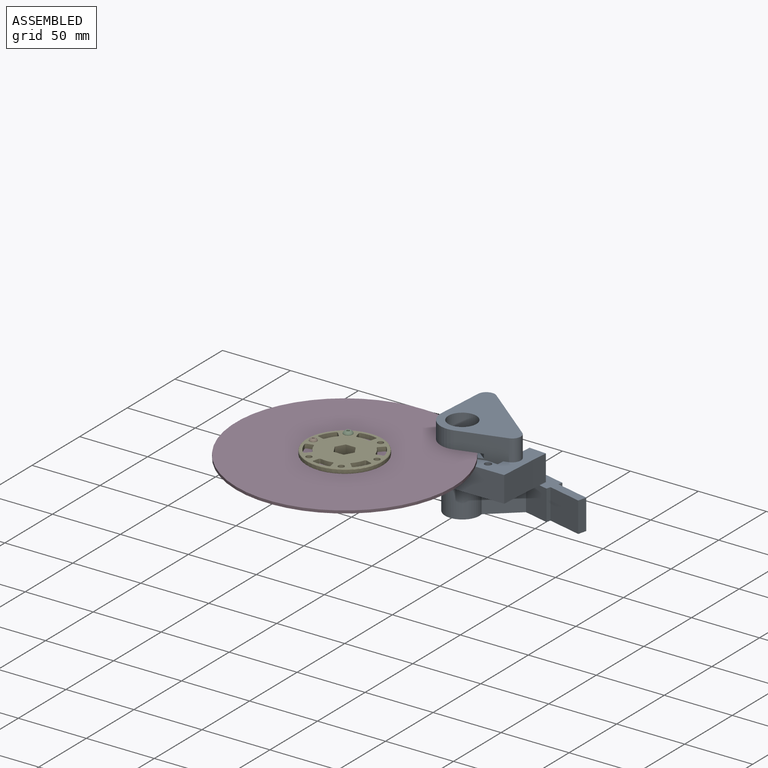
[diagram: assembled view]
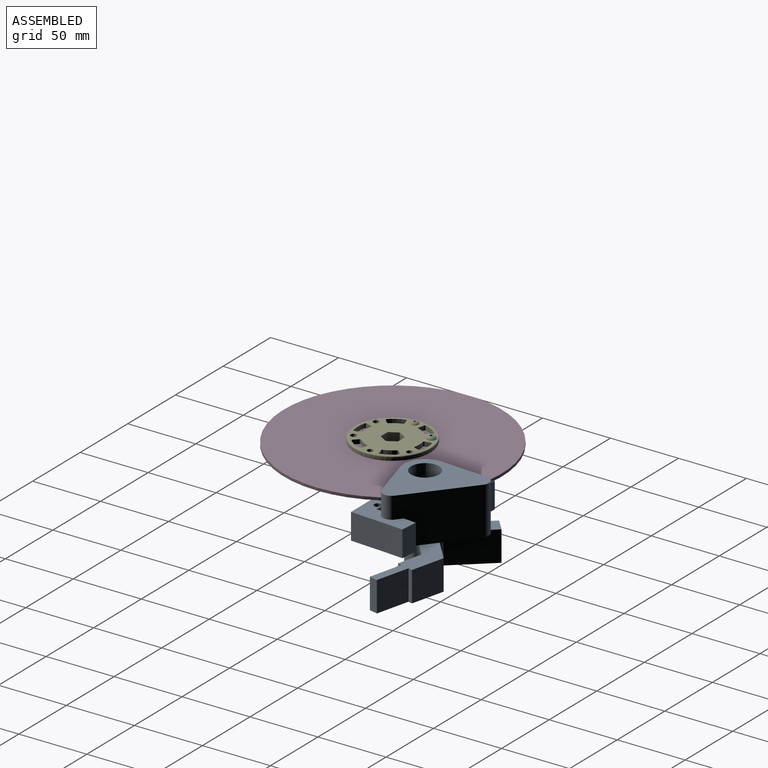
[diagram: assembled view, second angle]
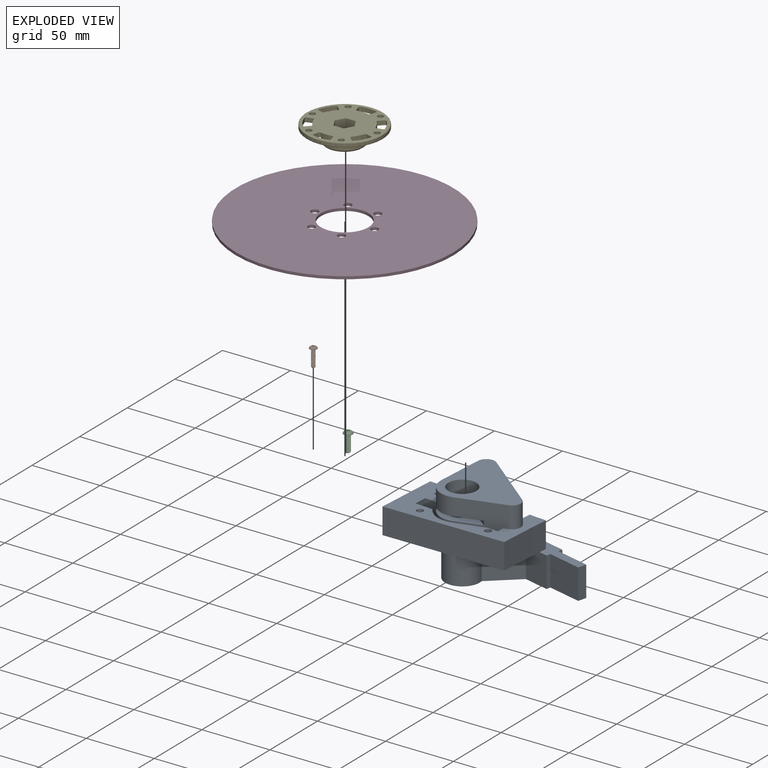
[diagram: exploded view]
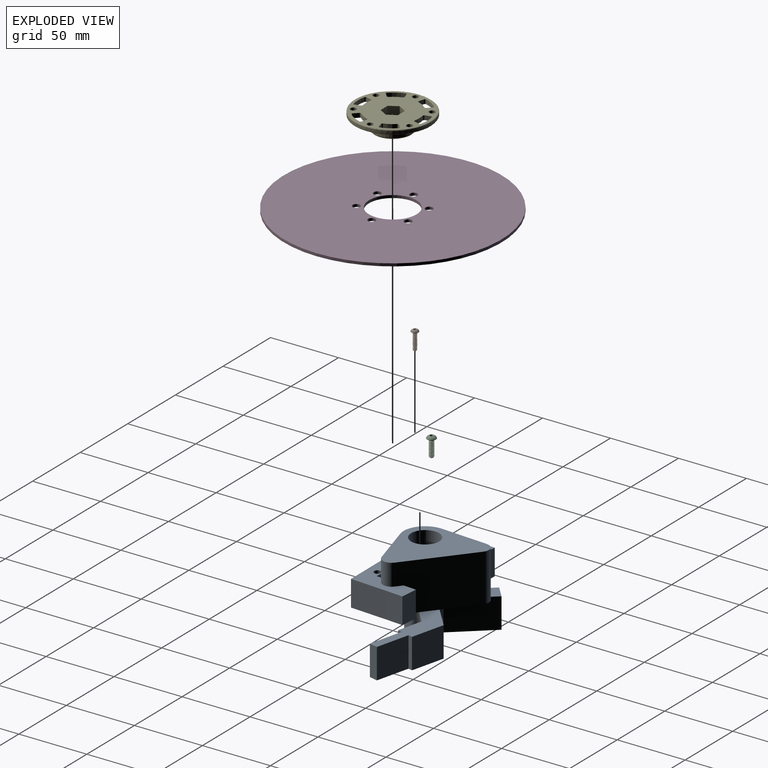
[diagram: exploded view, second angle]
ASSEMBLY  parts=5 mates=4
PART A: 53 faces, bbox 117.7x66.7x60.3 mm
  f0: plane 34.93x34.93mm, normal (-1,0,0), area 1008.1mm2, adj f1,f6,f7,f8,f9,f27,f33,f34
  f1: cylinder r=15.88mm len=21.3mm, axis (0,0,-1), area 387.1mm2, adj f0,f2,f7,f8
  f2: plane 34.93x32.82mm, normal (0.34,-0.94,0), area 1091.9mm2, adj f1,f3,f7,f8,f9,f12,f19,f33
  f3: cylinder r=6.35mm len=15.88mm, axis (0,0,-1), area 219.9mm2, adj f2,f4,f7,f34
  f4: plane 45.6x34.93mm, normal (0.57,0.82,0), area 1834.1mm2, adj f3,f6,f7,f28,f33,f34
  f5: cylinder r=10.32mm len=20.64mm, axis (0,0,-1), area 823.4mm2, adj f7,f8,f11
  f6: cylinder r=6.35mm len=34.93mm, axis (0,0,-1), area 483.8mm2, adj f0,f4,f7,f33
  f7: plane 58.3x57.15mm, normal (0,0,1), area 1769.3mm2, adj f0,f1,f2,f3,f4,f5,f6
  f8: plane 39.21x34.93mm, normal (0,0,-1), area 408mm2, adj f0,f1,f2,f5,f9
  f9: plane 39.21x27.45mm, normal (-0.57,-0.82,0), area 176.1mm2, adj f0,f2,f8,f10,f11,f20,f30,f34
  f10: plane 13.13x9.59mm, normal (0,0,-1), area 42.6mm2, adj f9,f20
  f11: plane 13.13x9.59mm, normal (0,0,1), area 42.6mm2, adj f5,f9
  f12: cylinder r=15.88mm len=21.3mm, axis (0,0,1), area 580.6mm2, adj f2,f13,f33,f34
  f13: plane 19.05x12.7mm, normal (0,-1,0), area 241.9mm2, adj f12,f14,f33,f34
  f14: plane 19.05x9.53mm, normal (1,0,0), area 181.5mm2, adj f13,f15,f33,f34
  f15: plane 19.05x13.26mm, normal (0,1,0), area 252.6mm2, adj f14,f16,f33,f34
  f16: cylinder r=18.03mm len=21.48mm, axis (0,0,1), area 468.4mm2, adj f15,f17,f33,f34
  f17: plane 20.39x19.05mm, normal (-0.34,0.94,0), area 413.4mm2, adj f16,f18,f33,f34
  f18: plane 19.05x8.37mm, normal (0,1,0), area 159.4mm2, adj f17,f19,f33,f34
  f19: plane 19.05x5.34mm, normal (-1,0,0), area 101.8mm2, adj f2,f18,f33,f34
  f20: cylinder r=10.32mm len=20.64mm, axis (0,0,1), area 1221.2mm2, adj f9,f10,f30,f34,f37
  f21: plane 19.05x12.7mm, normal (1,-0.02,0), area 241.9mm2, adj f22,f31,f33,f34
  f22: plane 27.11x19.05mm, normal (1,0,0), area 516.5mm2, adj f21,f23,f33,f34
  f23: plane 88.9x19.05mm, normal (0.07,-1,0), area 1697.9mm2, adj f22,f24,f33,f34
  f24: plane 46.04x19.05mm, normal (-1,0,0), area 877mm2, adj f23,f25,f33,f34
  f25: plane 19.05x12.7mm, normal (0,1,0), area 241.9mm2, adj f24,f26,f33,f34
  f26: plane 19.05x12.7mm, normal (1,0,0), area 241.9mm2, adj f25,f27,f33,f34
  f27: plane 19.05x12.7mm, normal (0,1,0), area 241.9mm2, adj f0,f26,f33,f34
  f28: plane 19.05x9.46mm, normal (-1,0.02,0), area 180.2mm2, adj f4,f31,f33,f34
  f29: cylinder r=2.5mm len=19.05mm, axis (0,0,1), area 299.2mm2, adj f33,f34
  f30: plane 19.05x1.01mm, normal (0,1,0), area 19.3mm2, adj f9,f20,f34,f37
  f31: plane 19.05x12.7mm, normal (0.02,1,0), area 241.9mm2, adj f21,f28,f33,f34
  f32: cylinder r=2.5mm len=19.05mm, axis (0,0,1), area 299.2mm2, adj f33,f34
  f33: plane 89.11x66.68mm, normal (0,0,-1), area 3256.1mm2, adj f0,f2,f4,f6,f12,f13,f14,f15
  f34: plane 89.11x46.37mm, normal (0,0,1), area 2066.6mm2, adj f0,f2,f3,f4,f9,f12,f13,f14
  f35: cylinder r=12.7mm len=25.4mm, axis (0,0,1), area 1434.3mm2, adj f33,f38,f39,f40,f41,f49,f50,f52
  f36: cylinder r=6.35mm len=25.4mm, axis (0,0,1), area 1013.4mm2, adj f37,f52
  f37: plane 21.65x20.64mm, normal (0,0,1), area 208.2mm2, adj f9,f20,f30,f36
  f38: plane 33.81x32.98mm, normal (0,0,1), area 423.7mm2, adj f35,f40,f50,f51
  f39: plane 73.13x32.63mm, normal (0,0,1), area 810.1mm2, adj f35,f41,f42,f43,f44,f45,f46,f47
  f40: plane 24.83x24.83mm, normal (0.71,0.71,0), area 780.4mm2, adj f35,f38,f51,f52
  f41: plane 23.65x23.65mm, normal (-0.71,0.71,0), area 743.5mm2, adj f35,f39,f42,f52
  f42: plane 25.01x22.23mm, normal (0.17,0.98,0), area 564.5mm2, adj f39,f41,f43,f52
  f43: plane 22.23x3.13mm, normal (0.98,-0.17,0), area 70.6mm2, adj f39,f42,f44,f52
  f44: plane 25.01x22.23mm, normal (0.17,0.98,0), area 564.5mm2, adj f39,f43,f45,f52
  f45: plane 22.23x6.25mm, normal (0.98,-0.17,0), area 141.1mm2, adj f39,f44,f46,f52
  f46: plane 25.01x22.23mm, normal (-0.17,-0.98,0), area 564.5mm2, adj f39,f45,f47,f52
  f47: plane 22.23x3.13mm, normal (0.98,-0.17,0), area 70.6mm2, adj f39,f46,f48,f52
  f48: plane 22.23x18.5mm, normal (-0.17,-0.98,0), area 417.6mm2, adj f39,f47,f49,f52
  f49: plane 22.23x18.98mm, normal (0.71,-0.71,0), area 596.5mm2, adj f35,f39,f48,f52
  f50: plane 24x24mm, normal (-0.71,-0.71,0), area 754.3mm2, adj f35,f38,f51,f52
  f51: plane 22.23x8.98mm, normal (-0.71,0.71,0), area 282.3mm2, adj f38,f40,f50,f52
  f52: plane 112.34x50.05mm, normal (0,0,-1), area 1613.8mm2, adj f35,f36,f40,f41,f42,f43,f44,f45
PART B: 24 faces, bbox 5.8x14.8x5.8 mm
  f0: cylinder r=1.42mm len=12.22mm, axis (0,1,0), area 13.7mm2, adj f2,f4,f6,f9
  f1: cone r=0.95mm half-angle=45deg, axis (0,-1,0), area 2.1mm2, adj f2,f3,f4,f5
  f2: cone r=0.95mm half-angle=45deg, axis (0,-1,0), area 0.6mm2, adj f0,f1,f4,f6
  f3: plane 1.89x1.89mm, normal (0,1,0), area 2.8mm2, adj f1
  f4: bspline ~13.26x3.29mm, area 71.4mm2, adj f0,f1,f2,f5,f9
  f5: cylinder r=1.01mm len=12.64mm, axis (0,1,0), area 25.5mm2, adj f1,f4,f6,f9
  f6: bspline ~13.04x3.29mm, area 71.7mm2, adj f0,f2,f5,f9
  f7: sphere r=3.07mm, area 24.5mm2, adj f8,f10
  f8: plane 2.85x2.85mm, normal (0,-1,0), area 3.7mm2, adj f7,f11,f12,f13,f14,f15,f16
  f9: plane 5.66x5.66mm, normal (0,1,0), area 18.3mm2, adj f0,f4,f5,f6,f10
  f10: cylinder r=2.71mm len=5.41mm, axis (0,-1,0), area 3.8mm2, adj f7,f9
  f11: cone r=0.92mm half-angle=45deg, axis (0,-1,0), area 0mm2, adj f8,f18
  f12: cone r=0.92mm half-angle=45deg, axis (0,-1,0), area 0mm2, adj f8,f19
  f13: cone r=0.92mm half-angle=45deg, axis (0,-1,0), area 0mm2, adj f8,f20
  f14: cone r=0.92mm half-angle=45deg, axis (0,-1,0), area 0mm2, adj f8,f21
  f15: cone r=0.92mm half-angle=45deg, axis (0,-1,0), area 0mm2, adj f8,f22
  f16: cone r=0.92mm half-angle=45deg, axis (0,-1,0), area 0mm2, adj f8,f23
  f17: plane 1.83x1.59mm, normal (0,-1,0), area 2.2mm2, adj f18,f19,f20,f21,f22,f23
  f18: plane 1.4x1.27mm, normal (-1,0,0), area 0.9mm2, adj f11,f17,f19,f23
  f19: plane 1.4x1.14mm, normal (-0.5,0,-0.87), area 0.9mm2, adj f12,f17,f18,f20
  f20: plane 1.4x1.14mm, normal (0.5,0,-0.87), area 0.9mm2, adj f13,f17,f19,f21
  f21: plane 1.4x1.27mm, normal (1,0,0), area 0.9mm2, adj f14,f17,f20,f22
  f22: plane 1.4x1.14mm, normal (0.5,0,0.87), area 0.9mm2, adj f15,f17,f21,f23
  f23: plane 1.4x1.14mm, normal (-0.5,0,0.87), area 0.9mm2, adj f16,f17,f18,f22
PART C: 24 faces, bbox 7.1x15.3x7.1 mm
  f0: cylinder r=1.75mm len=12.1mm, axis (0,1,0), area 16.8mm2, adj f1,f5,f22,f23
  f1: bspline ~13.39x3.51mm, area 87.3mm2, adj f0,f2,f4,f5,f23
  f2: cone r=1.16mm half-angle=45deg, axis (0,-1,0), area 3.2mm2, adj f1,f3,f4,f23
  f3: plane 2.31x2.31mm, normal (0,1,0), area 4.2mm2, adj f2
  f4: cylinder r=1.24mm len=12.62mm, axis (0,1,0), area 12.3mm2, adj f1,f2,f5,f22
  f5: plane 6.96x6.96mm, normal (0,1,0), area 27.7mm2, adj f0,f1,f4,f6,f22
  f6: cylinder r=3.33mm len=6.65mm, axis (0,-1,0), area 5.8mm2, adj f5,f7
  f7: sphere r=3.76mm, area 37.2mm2, adj f6,f8
  f8: plane 3.73x3.73mm, normal (0,-1,0), area 5.5mm2, adj f7,f9,f17,f18,f19,f20,f21
  f9: cone r=1.15mm half-angle=45deg, axis (0,-1,0), area 0mm2, adj f8,f10
  f10: plane 1.73x1.43mm, normal (0.5,0,0.87), area 1.4mm2, adj f9,f11,f15,f16
  f11: plane 2.29x1.98mm, normal (0,-1,0), area 3.4mm2, adj f10,f12,f13,f14,f15,f16
  f12: plane 1.73x1.43mm, normal (0.5,0,-0.87), area 1.4mm2, adj f11,f13,f16,f20
  f13: plane 1.73x1.43mm, normal (-0.5,0,-0.87), area 1.4mm2, adj f11,f12,f14,f19
  f14: plane 1.73x1.58mm, normal (-1,0,0), area 1.4mm2, adj f11,f13,f15,f18
  f15: plane 1.73x1.43mm, normal (-0.5,0,0.87), area 1.4mm2, adj f10,f11,f14,f17
  f16: plane 1.73x1.58mm, normal (1,0,0), area 1.4mm2, adj f10,f11,f12,f21
  f17: cone r=1.15mm half-angle=45deg, axis (0,-1,0), area 0mm2, adj f8,f15
  f18: cone r=1.15mm half-angle=45deg, axis (0,-1,0), area 0mm2, adj f8,f14
  f19: cone r=1.15mm half-angle=45deg, axis (0,-1,0), area 0mm2, adj f8,f13
  f20: cone r=1.15mm half-angle=45deg, axis (0,-1,0), area 0mm2, adj f8,f12
  f21: cone r=1.15mm half-angle=45deg, axis (0,-1,0), area 0mm2, adj f8,f16
  f22: bspline ~13x3.51mm, area 87.3mm2, adj f0,f4,f5,f23
  f23: cone r=1.16mm half-angle=45deg, axis (0,-1,0), area 0.9mm2, adj f0,f1,f2,f22
PART D: 10 faces, bbox 160x160x2 mm
  f0: cylinder r=17.5mm len=35mm, axis (0,0,-1), area 219.9mm2, adj f8,f9
  f1: cylinder r=2.75mm len=5.5mm, axis (0,0,-1), area 34.6mm2, adj f8,f9
  f2: cylinder r=2.75mm len=5.5mm, axis (0,0,-1), area 34.6mm2, adj f8,f9
  f3: cylinder r=2.75mm len=5.5mm, axis (0,0,-1), area 34.6mm2, adj f8,f9
  f4: cylinder r=2.75mm len=5.5mm, axis (0,0,-1), area 34.6mm2, adj f8,f9
  f5: cylinder r=2.75mm len=5.5mm, axis (0,0,-1), area 34.6mm2, adj f8,f9
  f6: cylinder r=2.75mm len=5.5mm, axis (0,0,-1), area 34.6mm2, adj f8,f9
  f7: cylinder r=80mm len=160mm, axis (0,0,-1), area 1005.3mm2, adj f8,f9
  f8: plane 160x160mm, normal (0,0,1), area 19001.5mm2, adj f0,f1,f2,f3,f4,f5,f6,f7
  f9: plane 160x160mm, normal (0,0,-1), area 19001.5mm2, adj f0,f1,f2,f3,f4,f5,f6,f7
PART E: 69 faces, bbox 12.7x60.5x60.5 mm
  f0: torus R=27.44mm, axis (-1,0,0), area 137mm2, adj f2,f18
  f1: torus R=27.44mm, axis (1,0,0), area 137mm2, adj f2,f61
  f2: cylinder r=27.94mm len=55.88mm, axis (-1,0,0), area 381.8mm2, adj f0,f1
  f3: cone r=14.29mm half-angle=45deg, axis (1,0,0), area 122.6mm2, adj f5,f62
  f4: torus R=15.56mm, axis (-1,0,0), area 185mm2, adj f5,f18
  f5: cylinder r=14.29mm len=28.59mm, axis (1,0,0), area 651.6mm2, adj f3,f4
  f6: cylinder r=2.15mm len=4.3mm, axis (1,0,0), area 42.9mm2, adj f18,f61
  f7: cylinder r=2.15mm len=4.3mm, axis (1,0,0), area 42.9mm2, adj f18,f61
  f8: cylinder r=2.15mm len=4.3mm, axis (1,0,0), area 42.9mm2, adj f18,f61
  f9: cylinder r=2.15mm len=4.3mm, axis (1,0,0), area 42.9mm2, adj f18,f61
  f10: cylinder r=1mm len=3.18mm, axis (1,0,0), area 5.1mm2, adj f18,f58,f59,f61
  f11: cylinder r=1mm len=3.18mm, axis (1,0,0), area 5.1mm2, adj f18,f47,f53,f61
  f12: cylinder r=1mm len=3.18mm, axis (1,0,0), area 5.1mm2, adj f18,f40,f46,f61
  f13: cylinder r=2.15mm len=4.3mm, axis (1,0,0), area 42.9mm2, adj f18,f61
  f14: cylinder r=1mm len=3.18mm, axis (1,0,0), area 5.1mm2, adj f18,f37,f38,f61
  f15: cylinder r=1mm len=3.18mm, axis (1,0,0), area 4.8mm2, adj f18,f28,f29,f61
  f16: cylinder r=1mm len=3.18mm, axis (1,0,0), area 4.8mm2, adj f18,f19,f20,f61
  f17: cylinder r=2.15mm len=4.3mm, axis (1,0,0), area 42.9mm2, adj f18,f61
  f18: plane 54.88x54.88mm, normal (-1,0,0), area 1095.5mm2, adj f0,f4,f6,f7,f8,f9,f10,f11
  f19: plane 3.18x2.83mm, normal (0,-0.71,-0.71), area 12.7mm2, adj f16,f18,f25,f61
  f20: cylinder r=19.5mm len=7.2mm, axis (1,0,0), area 26.6mm2, adj f16,f18,f21,f61
  f21: cylinder r=1mm len=3.18mm, axis (1,0,0), area 4.8mm2, adj f18,f20,f22,f61
  f22: plane 3.87x3.18mm, normal (0,0.97,0.26), area 12.7mm2, adj f18,f21,f23,f61
  f23: cylinder r=1mm len=3.18mm, axis (1,0,0), area 5.1mm2, adj f18,f22,f24,f61
  f24: cylinder r=25.5mm len=9.75mm, axis (1,0,0), area 36mm2, adj f18,f23,f25,f61
  f25: cylinder r=1mm len=3.18mm, axis (1,0,0), area 5.1mm2, adj f18,f19,f24,f61
  f26: plane 3.87x3.18mm, normal (0,-0.97,0.26), area 12.7mm2, adj f18,f27,f32,f61
  f27: cylinder r=1mm len=3.18mm, axis (1,0,0), area 4.8mm2, adj f18,f26,f28,f61
  f28: cylinder r=19.5mm len=7.2mm, axis (1,0,0), area 26.6mm2, adj f15,f18,f27,f61
  f29: plane 3.18x2.83mm, normal (0,0.71,-0.71), area 12.7mm2, adj f15,f18,f30,f61
  f30: cylinder r=1mm len=3.18mm, axis (1,0,0), area 5.1mm2, adj f18,f29,f31,f61
  f31: cylinder r=25.5mm len=9.74mm, axis (1,0,0), area 36mm2, adj f18,f30,f32,f61
  f32: cylinder r=1mm len=3.18mm, axis (1,0,0), area 5.1mm2, adj f18,f26,f31,f61
  f33: plane 3.87x3.18mm, normal (0,-0.26,0.97), area 12.7mm2, adj f18,f34,f39,f61
  f34: cylinder r=1mm len=3.18mm, axis (1,0,0), area 4.8mm2, adj f18,f33,f35,f61
  f35: cylinder r=19.5mm len=8.32mm, axis (1,0,0), area 26.6mm2, adj f18,f34,f36,f61
  f36: cylinder r=1mm len=3.18mm, axis (1,0,0), area 4.8mm2, adj f18,f35,f37,f61
  f37: plane 3.87x3.18mm, normal (0,-0.26,-0.97), area 12.7mm2, adj f14,f18,f36,f61
  f38: cylinder r=25.5mm len=11.26mm, axis (1,0,0), area 36mm2, adj f14,f18,f39,f61
  f39: cylinder r=1mm len=3.18mm, axis (1,0,0), area 5.1mm2, adj f18,f33,f38,f61
  f40: plane 3.87x3.18mm, normal (0,0.26,-0.97), area 12.7mm2, adj f12,f18,f41,f61
  f41: cylinder r=1mm len=3.18mm, axis (1,0,0), area 4.8mm2, adj f18,f40,f42,f61
  f42: cylinder r=19.5mm len=8.32mm, axis (1,0,0), area 26.6mm2, adj f18,f41,f43,f61
  f43: cylinder r=1mm len=3.18mm, axis (1,0,0), area 4.8mm2, adj f18,f42,f44,f61
  f44: plane 3.87x3.18mm, normal (0,0.26,0.97), area 12.7mm2, adj f18,f43,f45,f61
  f45: cylinder r=1mm len=3.18mm, axis (1,0,0), area 5.1mm2, adj f18,f44,f46,f61
  f46: cylinder r=25.5mm len=11.26mm, axis (1,0,0), area 36mm2, adj f12,f18,f45,f61
  f47: plane 3.87x3.18mm, normal (0,0.97,-0.26), area 12.7mm2, adj f11,f18,f48,f61
  f48: cylinder r=1mm len=3.18mm, axis (1,0,0), area 4.8mm2, adj f18,f47,f49,f61
  f49: cylinder r=19.5mm len=7.2mm, axis (1,0,0), area 26.6mm2, adj f18,f48,f50,f61
  f50: cylinder r=1mm len=3.18mm, axis (1,0,0), area 4.8mm2, adj f18,f49,f51,f61
  f51: plane 3.18x2.83mm, normal (0,-0.71,0.71), area 12.7mm2, adj f18,f50,f52,f61
  f52: cylinder r=1mm len=3.18mm, axis (1,0,0), area 5.1mm2, adj f18,f51,f53,f61
  f53: cylinder r=25.5mm len=9.74mm, axis (1,0,0), area 36mm2, adj f11,f18,f52,f61
  f54: plane 3.18x2.83mm, normal (0,0.71,0.71), area 12.7mm2, adj f18,f55,f60,f61
  f55: cylinder r=1mm len=3.18mm, axis (1,0,0), area 4.8mm2, adj f18,f54,f56,f61
  f56: cylinder r=19.5mm len=7.2mm, axis (1,0,0), area 26.6mm2, adj f18,f55,f57,f61
  f57: cylinder r=1mm len=3.18mm, axis (1,0,0), area 4.8mm2, adj f18,f56,f58,f61
  f58: plane 3.87x3.18mm, normal (0,-0.97,-0.26), area 12.7mm2, adj f10,f18,f57,f61
  f59: cylinder r=25.5mm len=9.75mm, axis (1,0,0), area 36mm2, adj f10,f18,f60,f61
  f60: cylinder r=1mm len=3.18mm, axis (1,0,0), area 5.1mm2, adj f18,f54,f59,f61
  f61: plane 54.88x54.88mm, normal (1,0,0), area 1716.4mm2, adj f1,f6,f7,f8,f9,f10,f11,f12
  f62: plane 26.59x26.59mm, normal (-1,0,0), area 415.1mm2, adj f3,f63,f64,f65,f66,f67,f68
  f63: plane 12.7x7.35mm, normal (0,-1,0), area 93.3mm2, adj f61,f62,f64,f68
  f64: plane 12.7x6.36mm, normal (0,-0.5,0.87), area 93.3mm2, adj f61,f62,f63,f65
  f65: plane 12.7x6.36mm, normal (0,0.5,0.87), area 93.3mm2, adj f61,f62,f64,f66
  f66: plane 12.7x7.35mm, normal (0,1,0), area 93.3mm2, adj f61,f62,f65,f67
  f67: plane 12.7x6.36mm, normal (0,0.5,-0.87), area 93.3mm2, adj f61,f62,f66,f68
  f68: plane 12.7x6.36mm, normal (0,-0.5,-0.87), area 93.3mm2, adj f61,f62,f63,f67
PLACE A rot(axis=(0,0,-1),3.7deg) t=(46.88,56.62,3.18)mm
PLACE B rot(axis=(-1,0,0),90deg) t=(-23.17,0.05,6.67)mm
PLACE C rot(axis=(-1,0,0),90deg) t=(-11.7,20.28,7.03)mm
PLACE D at identity
PLACE E rot(axis=(0.71,0,0.71),180deg) t=(0,0,-7.53)mm
MATE planar D.f7 <-> A.f20  axis (0,0,-1) through (0,0,0)mm
MATE fastened E.f0 <-> D.f0  axis (0,0,-1) through (0,0,2)mm
MATE planar B.f9 <-> E.f7  axis (0,0,-1) through (-23.19,0,5.18)mm
MATE planar C.f5 <-> E.f8  axis (0,0,-1) through (-11.72,20.22,5.18)mm
